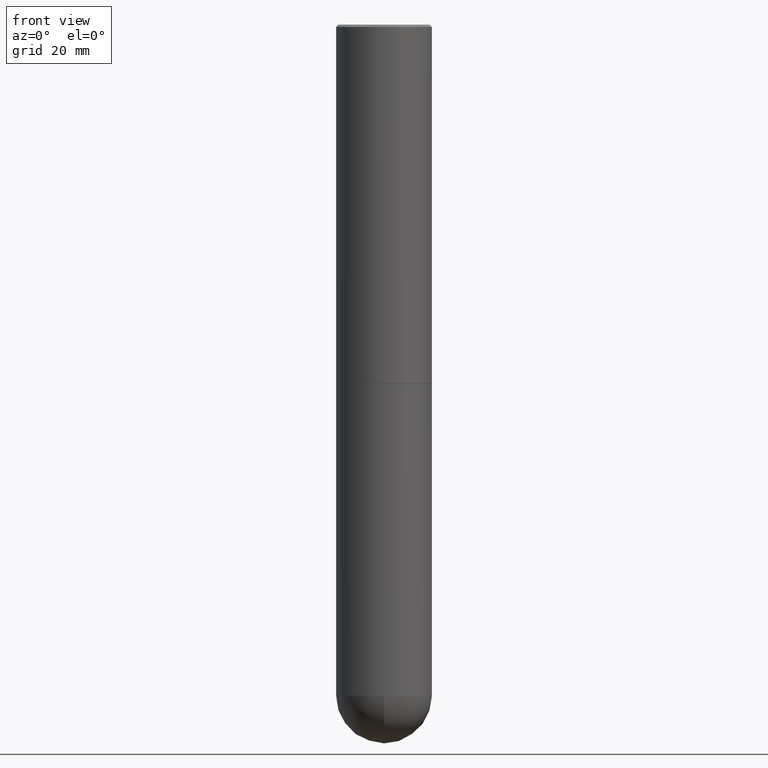
[diagram: clean part render]
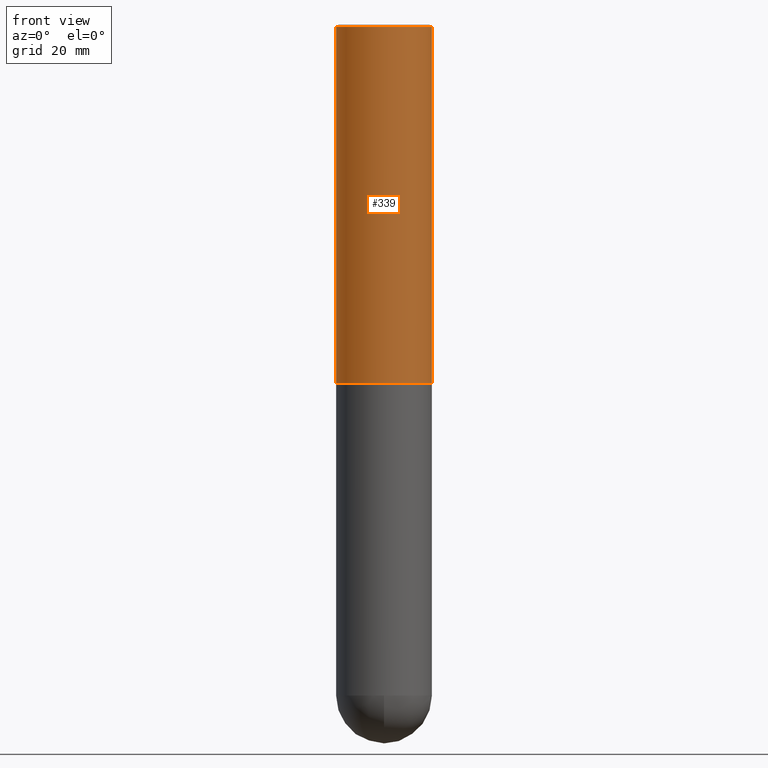
[diagram: same view with one face highlighted and labeled with its STEP entity id]
A machine part, front view. The second image highlights one B-rep face of the part: STEP entity #339.
In plain terms, the highlighted cylindrical surface (partial cylindrical patch) has radius 10 mm, axis along (-0, 0, 1).
Its self-contained STEP definition (entity closure, byte-faithful):
#24 = CARTESIAN_POINT ( 'NONE',  ( 0.3937000000000001609, -2.749192406205084400E-15, 1.919750796630860732E-29 ) ) ;
#29 = AXIS2_PLACEMENT_3D ( 'NONE', #53, #412, #381 ) ;
#53 = CARTESIAN_POINT ( 'NONE',  ( 4.890937612370295054E-31, -6.982962677686322424E-17, -0.02000000000000009062 ) ) ;
#59 = CARTESIAN_POINT ( 'NONE',  ( -0.3937000000000003830, -2.390410796632568923E-15, -2.951700000000000212 ) ) ;
#66 = EDGE_LOOP ( 'NONE', ( #233, #331, #258, #195 ) ) ;
#75 = EDGE_CURVE ( 'NONE', #266, #230, #208, .T. ) ;
#83 = AXIS2_PLACEMENT_3D ( 'NONE', #96, #196, #127 ) ;
#85 = CARTESIAN_POINT ( 'NONE',  ( 0.000000000000000000, 0.000000000000000000, 0.000000000000000000 ) ) ;
#89 = EDGE_CURVE ( 'NONE', #237, #292, #209, .T. ) ;
#96 = CARTESIAN_POINT ( 'NONE',  ( 7.218290275216666916E-29, -1.030580546786331359E-14, -2.951700000000000212 ) ) ;
#122 = CARTESIAN_POINT ( 'NONE',  ( 0.3937000000000000499, -2.770807688499515734E-15, -0.02000000000000009062 ) ) ;
#127 = DIRECTION ( 'NONE',  ( 1.000000000000000000, -6.982962677686269077E-15, 0.000000000000000000 ) ) ;
#175 = VECTOR ( 'NONE', #202, 39.37007874015748143 ) ;
#177 = DIRECTION ( 'NONE',  ( -2.445468806185136877E-29, 3.491481338843145188E-15, 1.000000000000000000 ) ) ;
#181 = DIRECTION ( 'NONE',  ( -2.445468806185136597E-29, 3.491481338843145583E-15, 1.000000000000000000 ) ) ;
#195 = ORIENTED_EDGE ( 'NONE', *, *, #299, .F. ) ;
#196 = DIRECTION ( 'NONE',  ( -2.445468806185136597E-29, 3.491481338843145583E-15, 1.000000000000000000 ) ) ;
#202 = DIRECTION ( 'NONE',  ( -2.445468806185136877E-29, 3.491481338843145188E-15, 1.000000000000000000 ) ) ;
#208 = LINE ( 'NONE', #24, #175 ) ;
#209 = LINE ( 'NONE', #269, #285 ) ;
#213 = CIRCLE ( 'NONE', #83, 0.3937000000000002720 ) ;
#230 = VERTEX_POINT ( 'NONE', #122 ) ;
#233 = ORIENTED_EDGE ( 'NONE', *, *, #89, .F. ) ;
#237 = VERTEX_POINT ( 'NONE', #59 ) ;
#258 = ORIENTED_EDGE ( 'NONE', *, *, #75, .T. ) ;
#266 = VERTEX_POINT ( 'NONE', #342 ) ;
#269 = CARTESIAN_POINT ( 'NONE',  ( -0.3937000000000001609, 2.797406750687515575E-15, -1.936584745033357296E-29 ) ) ;
#278 = FACE_OUTER_BOUND ( 'NONE', #66, .T. ) ;
#285 = VECTOR ( 'NONE', #177, 39.37007874015748143 ) ;
#292 = VERTEX_POINT ( 'NONE', #346 ) ;
#299 = EDGE_CURVE ( 'NONE', #292, #230, #350, .T. ) ;
#313 = DIRECTION ( 'NONE',  ( 1.000000000000000000, -6.982962677686266711E-15, 4.876176775795935793E-29 ) ) ;
#331 = ORIENTED_EDGE ( 'NONE', *, *, #375, .T. ) ;
#339 = ADVANCED_FACE ( 'NONE', ( #278 ), #407, .T. ) ;
#342 = CARTESIAN_POINT ( 'NONE',  ( 0.3937000000000002720, -1.305499787406839996E-14, -2.951700000000000212 ) ) ;
#346 = CARTESIAN_POINT ( 'NONE',  ( -0.3937000000000000499, 2.679362779428219918E-15, -0.02000000000000009062 ) ) ;
#350 = CIRCLE ( 'NONE', #29, 0.3937000000000000499 ) ;
#357 = AXIS2_PLACEMENT_3D ( 'NONE', #85, #181, #313 ) ;
#375 = EDGE_CURVE ( 'NONE', #237, #266, #213, .T. ) ;
#381 = DIRECTION ( 'NONE',  ( 1.000000000000000000, -6.982962677686265922E-15, 0.000000000000000000 ) ) ;
#407 = CYLINDRICAL_SURFACE ( 'NONE', #357, 0.3937000000000001609 ) ;
#412 = DIRECTION ( 'NONE',  ( -2.445468806185136597E-29, 3.491481338843145583E-15, 1.000000000000000000 ) ) ;